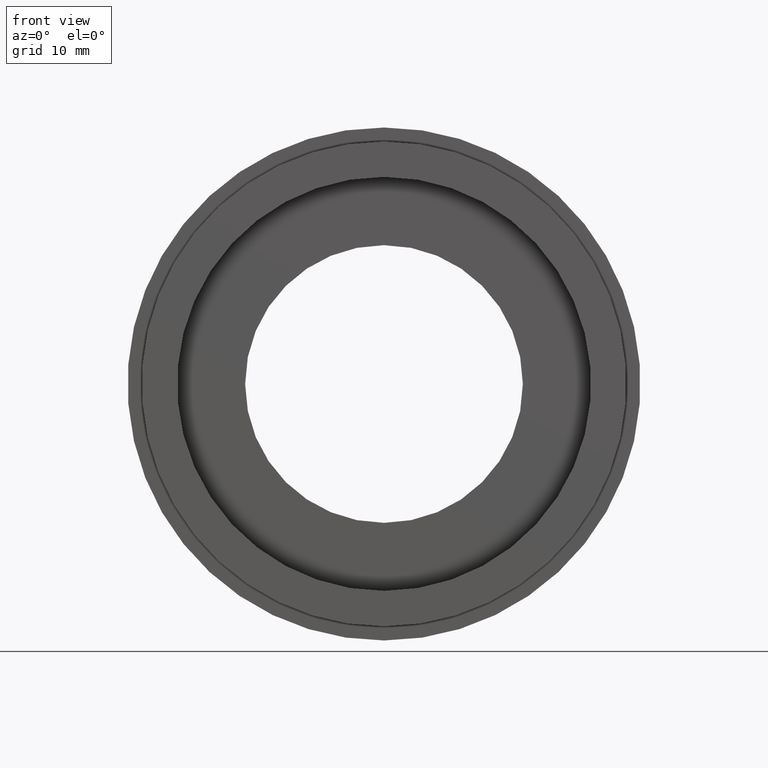
[diagram: clean part render]
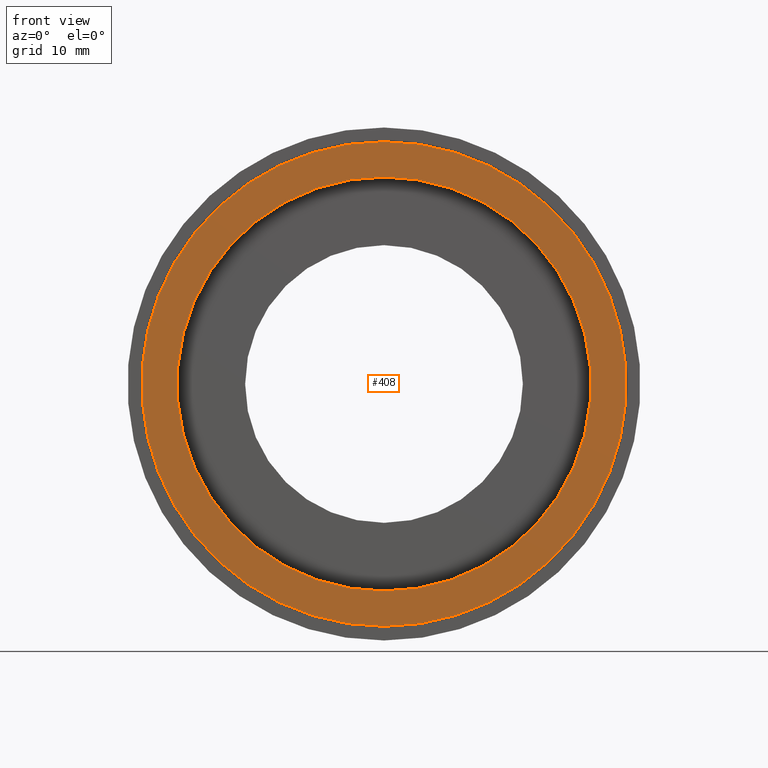
[diagram: same view with one face highlighted and labeled with its STEP entity id]
A machine part, front view. The second image highlights one B-rep face of the part: STEP entity #408.
In plain terms, the highlighted planar face has unit normal (-0, 1, 0).
Its self-contained STEP definition (entity closure, byte-faithful):
#16 = VERTEX_POINT ( 'NONE', #251 ) ;
#24 = EDGE_LOOP ( 'NONE', ( #67, #486 ) ) ;
#56 = DIRECTION ( 'NONE',  ( -0.0000000000000000000, 1.000000000000000000, 0.0000000000000000000 ) ) ;
#67 = ORIENTED_EDGE ( 'NONE', *, *, #146, .T. ) ;
#68 = VERTEX_POINT ( 'NONE', #102 ) ;
#77 = DIRECTION ( 'NONE',  ( -0.0000000000000000000, 1.000000000000000000, -0.0000000000000000000 ) ) ;
#81 = AXIS2_PLACEMENT_3D ( 'NONE', #546, #77, #231 ) ;
#102 = CARTESIAN_POINT ( 'NONE',  ( 2.510525938252074500E-015, 0.0000000000000000000, -20.50000000000000000 ) ) ;
#140 = DIRECTION ( 'NONE',  ( -0.0000000000000000000, 1.000000000000000000, -0.0000000000000000000 ) ) ;
#146 = EDGE_CURVE ( 'NONE', #16, #68, #553, .T. ) ;
#154 = PLANE ( 'NONE',  #602 ) ;
#171 = FACE_BOUND ( 'NONE', #24, .T. ) ;
#178 = CARTESIAN_POINT ( 'NONE',  ( 0.0000000000000000000, 0.0000000000000000000, 0.0000000000000000000 ) ) ;
#191 = CARTESIAN_POINT ( 'NONE',  ( 0.0000000000000000000, 0.0000000000000000000, 24.00000000000000400 ) ) ;
#197 = DIRECTION ( 'NONE',  ( 0.0000000000000000000, 0.0000000000000000000, 1.000000000000000000 ) ) ;
#227 = ORIENTED_EDGE ( 'NONE', *, *, #382, .F. ) ;
#231 = DIRECTION ( 'NONE',  ( 0.0000000000000000000, 0.0000000000000000000, 1.000000000000000000 ) ) ;
#251 = CARTESIAN_POINT ( 'NONE',  ( 0.0000000000000000000, 0.0000000000000000000, 20.50000000000000000 ) ) ;
#256 = CIRCLE ( 'NONE', #381, 24.00000000000000400 ) ;
#274 = VERTEX_POINT ( 'NONE', #512 ) ;
#275 = DIRECTION ( 'NONE',  ( 0.0000000000000000000, 0.0000000000000000000, 1.000000000000000000 ) ) ;
#314 = FACE_OUTER_BOUND ( 'NONE', #607, .T. ) ;
#325 = CARTESIAN_POINT ( 'NONE',  ( 0.0000000000000000000, 0.0000000000000000000, 0.0000000000000000000 ) ) ;
#344 = VERTEX_POINT ( 'NONE', #191 ) ;
#367 = CARTESIAN_POINT ( 'NONE',  ( 20.50000000000000000, 0.0000000000000000000, 0.0000000000000000000 ) ) ;
#381 = AXIS2_PLACEMENT_3D ( 'NONE', #325, #544, #275 ) ;
#382 = EDGE_CURVE ( 'NONE', #274, #344, #256, .T. ) ;
#395 = AXIS2_PLACEMENT_3D ( 'NONE', #178, #475, #197 ) ;
#408 = ADVANCED_FACE ( 'NONE', ( #314, #171 ), #154, .F. ) ;
#427 = DIRECTION ( 'NONE',  ( 0.0000000000000000000, 0.0000000000000000000, 1.000000000000000000 ) ) ;
#440 = EDGE_CURVE ( 'NONE', #68, #16, #601, .T. ) ;
#475 = DIRECTION ( 'NONE',  ( -0.0000000000000000000, 1.000000000000000000, -0.0000000000000000000 ) ) ;
#486 = ORIENTED_EDGE ( 'NONE', *, *, #440, .T. ) ;
#512 = CARTESIAN_POINT ( 'NONE',  ( 2.939152317953648300E-015, 0.0000000000000000000, -24.00000000000000400 ) ) ;
#513 = ORIENTED_EDGE ( 'NONE', *, *, #573, .F. ) ;
#544 = DIRECTION ( 'NONE',  ( -0.0000000000000000000, 1.000000000000000000, -0.0000000000000000000 ) ) ;
#546 = CARTESIAN_POINT ( 'NONE',  ( 0.0000000000000000000, 0.0000000000000000000, 0.0000000000000000000 ) ) ;
#553 = CIRCLE ( 'NONE', #395, 20.50000000000000000 ) ;
#567 = CARTESIAN_POINT ( 'NONE',  ( 0.0000000000000000000, 0.0000000000000000000, 0.0000000000000000000 ) ) ;
#573 = EDGE_CURVE ( 'NONE', #344, #274, #593, .T. ) ;
#593 = CIRCLE ( 'NONE', #612, 24.00000000000000400 ) ;
#601 = CIRCLE ( 'NONE', #81, 20.50000000000000000 ) ;
#602 = AXIS2_PLACEMENT_3D ( 'NONE', #367, #56, #427 ) ;
#607 = EDGE_LOOP ( 'NONE', ( #513, #227 ) ) ;
#612 = AXIS2_PLACEMENT_3D ( 'NONE', #567, #140, #620 ) ;
#620 = DIRECTION ( 'NONE',  ( 0.0000000000000000000, 0.0000000000000000000, 1.000000000000000000 ) ) ;